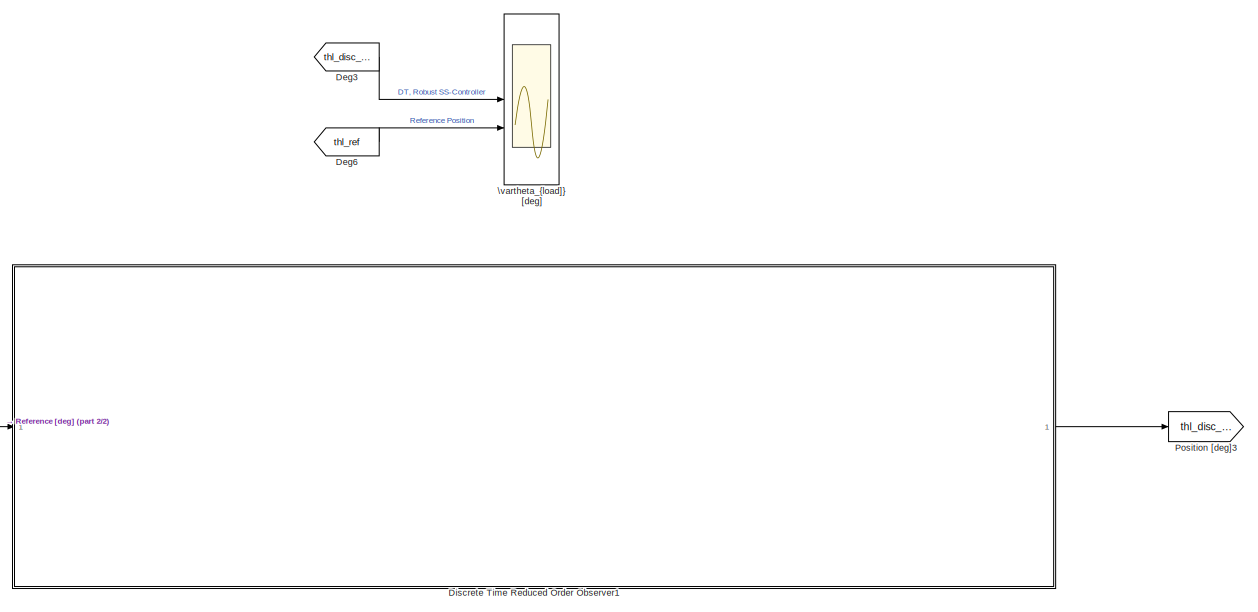
[diagram: root canvas - part 1/2, most of the canvas]
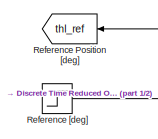
[diagram: root canvas - part 2/2, middle left region]
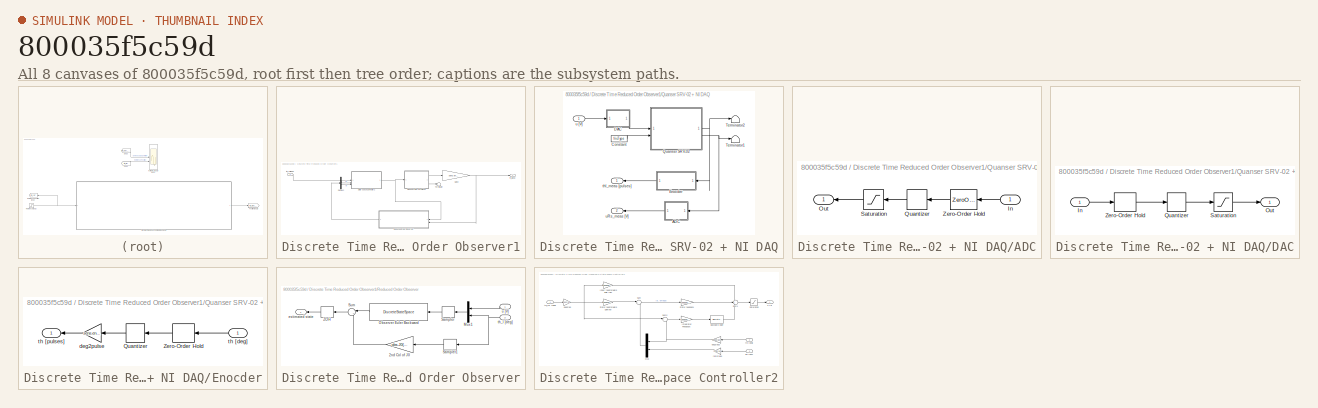
[diagram: thumbnail index - all 8 canvases of the model, root first then tree order]
MODEL slx_800035f5c59d
KIND model
CONFIG AbsTol = auto
CONFIG EnableMultiTasking = off
CONFIG FixedStep = sIn.step_size
CONFIG MaxStep = sIn.step_size
CONFIG MinStep = auto
CONFIG RelTol = auto
CONFIG SampleTimeConstraint = Unconstrained
CONFIG SolverName = VariableStepAuto
CONFIG StartTime = 0.0
CONFIG StopTime = sIn.simulation_time
BLOCK [From] Deg3
  GotoTag = thl_disc_rob
BLOCK [From] Deg6
  GotoTag = thl_ref
BLOCK [SubSystem] Discrete Time Reduced Order Observer1
BLOCK [Demux] Discrete Time Reduced Order Observer1/Demux2
  Outputs = 2
BLOCK [Gain] Discrete Time Reduced Order Observer1/Gain2
  Gain = sens.enc.pulse2deg
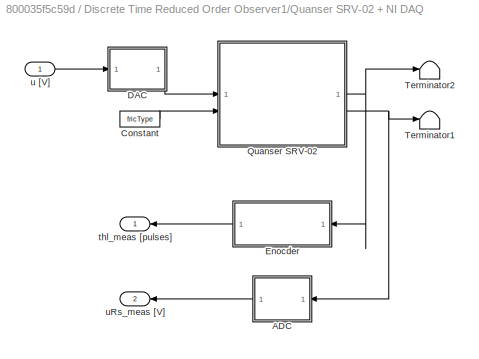
BLOCK [SubSystem] Discrete Time Reduced Order Observer1/Quanser SRV-02 + NI DAQ
BLOCK [SubSystem] Discrete Time Reduced Order Observer1/Quanser SRV-02 + NI DAQ/ADC
BLOCK [Inport] Discrete Time Reduced Order Observer1/Quanser SRV-02 + NI DAQ/ADC/In
BLOCK [Outport] Discrete Time Reduced Order Observer1/Quanser SRV-02 + NI DAQ/ADC/Out
BLOCK [Quantizer] Discrete Time Reduced Order Observer1/Quanser SRV-02 + NI DAQ/ADC/Quantizer
  QuantizationInterval = daq.adc.q
BLOCK [Saturate] Discrete Time Reduced Order Observer1/Quanser SRV-02 + NI DAQ/ADC/Saturation
  LowerLimit = -daq.adc.fs
  UpperLimit = daq.adc.fs
BLOCK [ZeroOrderHold] Discrete Time Reduced Order Observer1/Quanser SRV-02 + NI DAQ/ADC/Zero-Order Hold
  SampleTime = Ts
BLOCK [Constant] Discrete Time Reduced Order Observer1/Quanser SRV-02 + NI DAQ/Constant
  Value = fricType
BLOCK [SubSystem] Discrete Time Reduced Order Observer1/Quanser SRV-02 + NI DAQ/DAC
BLOCK [Inport] Discrete Time Reduced Order Observer1/Quanser SRV-02 + NI DAQ/DAC/In
BLOCK [Outport] Discrete Time Reduced Order Observer1/Quanser SRV-02 + NI DAQ/DAC/Out
BLOCK [Quantizer] Discrete Time Reduced Order Observer1/Quanser SRV-02 + NI DAQ/DAC/Quantizer
  QuantizationInterval = daq.dac.q
BLOCK [Saturate] Discrete Time Reduced Order Observer1/Quanser SRV-02 + NI DAQ/DAC/Saturation
  LowerLimit = -daq.dac.fs
  UpperLimit = daq.dac.fs
BLOCK [ZeroOrderHold] Discrete Time Reduced Order Observer1/Quanser SRV-02 + NI DAQ/DAC/Zero-Order Hold
  SampleTime = Ts
BLOCK [SubSystem] Discrete Time Reduced Order Observer1/Quanser SRV-02 + NI DAQ/Enocder
BLOCK [Quantizer] Discrete Time Reduced Order Observer1/Quanser SRV-02 + NI DAQ/Enocder/Quantizer
  QuantizationInterval = sens.enc.pulse2deg
BLOCK [ZeroOrderHold] Discrete Time Reduced Order Observer1/Quanser SRV-02 + NI DAQ/Enocder/Zero-Order Hold
  SampleTime = Ts
BLOCK [Gain] Discrete Time Reduced Order Observer1/Quanser SRV-02 + NI DAQ/Enocder/deg2pulse
  Gain = sens.enc.deg2pulse
BLOCK [Inport] Discrete Time Reduced Order Observer1/Quanser SRV-02 + NI DAQ/Enocder/th [deg]
BLOCK [Outport] Discrete Time Reduced Order Observer1/Quanser SRV-02 + NI DAQ/Enocder/th [pulses]
BLOCK [ModelReference] Discrete Time Reduced Order Observer1/Quanser SRV-02 + NI DAQ/Quanser SRV-02
  CopyOfModelProtected = on
  ModelNameDialog = SRV02IL_win64.slxp
  ModelReferenceVersion = 1.44
BLOCK [Terminator] Discrete Time Reduced Order Observer1/Quanser SRV-02 + NI DAQ/Terminator1
BLOCK [Terminator] Discrete Time Reduced Order Observer1/Quanser SRV-02 + NI DAQ/Terminator2
BLOCK [Outport] Discrete Time Reduced Order Observer1/Quanser SRV-02 + NI DAQ/thl_meas [pulses]
BLOCK [Inport] Discrete Time Reduced Order Observer1/Quanser SRV-02 + NI DAQ/u [V]
BLOCK [Outport] Discrete Time Reduced Order Observer1/Quanser SRV-02 + NI DAQ/uRs_meas [V]
  Port = 2
BLOCK [SubSystem] Discrete Time Reduced Order Observer1/Reduced Order Observer
BLOCK [Gain] Discrete Time Reduced Order Observer1/Reduced Order Observer/2nd Col of J0
  Gain = obs.J0(:,2)
BLOCK [Mux] Discrete Time Reduced Order Observer1/Reduced Order Observer/Mux1
  DisplayOption = bar
  Inputs = 2
BLOCK [DiscreteStateSpace] Discrete Time Reduced Order Observer1/Reduced Order Observer/Observer Euler Backward
  A = obs.Phi0
  B = obs.Gamma0
  C = obs.H0
  D = zeros(2,2)
  SampleTime = sIn.T_s
BLOCK [ZeroOrderHold] Discrete Time Reduced Order Observer1/Reduced Order Observer/Sampler
  SampleTime = sIn.T_s
BLOCK [ZeroOrderHold] Discrete Time Reduced Order Observer1/Reduced Order Observer/Sampler1
  SampleTime = sIn.T_s
BLOCK [Sum] Discrete Time Reduced Order Observer1/Reduced Order Observer/Sum
  Inputs = |++
BLOCK [ZeroOrderHold] Discrete Time Reduced Order Observer1/Reduced Order Observer/ZOH
  SampleTime = sIn.T_s
BLOCK [Outport] Discrete Time Reduced Order Observer1/Reduced Order Observer/estimated state
BLOCK [Inport] Discrete Time Reduced Order Observer1/Reduced Order Observer/th_l [deg]
  Port = 2
BLOCK [Inport] Discrete Time Reduced Order Observer1/Reduced Order Observer/u [V]
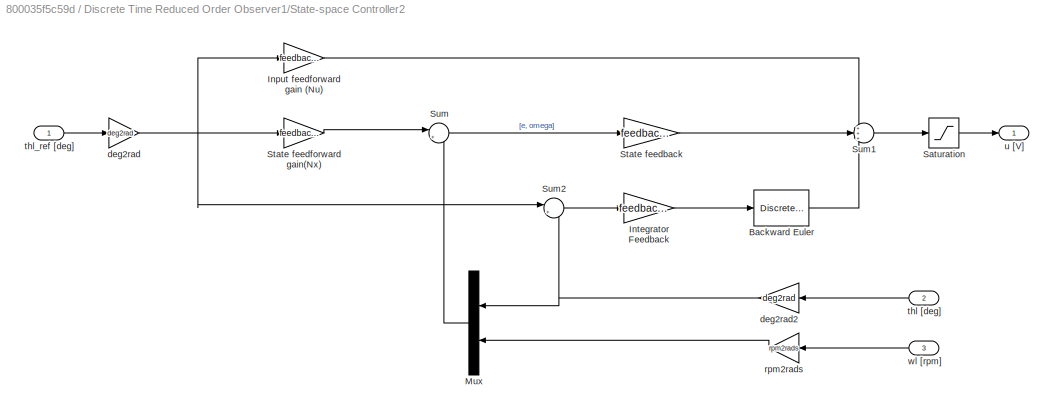
BLOCK [SubSystem] Discrete Time Reduced Order Observer1/State-space Controller2
BLOCK [DiscreteIntegrator] Discrete Time Reduced Order Observer1/State-space Controller2/Backward Euler
  ICPrevOutput = DiscIntNeverNeededParam
  ICPrevScaledInput = DiscIntNeverNeededParam
  InitialConditionSetting = Auto
  IntegratorMethod = Integration: Backward Euler
  SampleTime = sIn.T_s
BLOCK [Gain] Discrete Time Reduced Order Observer1/State-space Controller2/Input feedforward gain (Nu)
  Gain = feedback.Nu
BLOCK [Gain] Discrete Time Reduced Order Observer1/State-space Controller2/Integrator Feedback
  Gain = feedback.integrator
BLOCK [Mux] Discrete Time Reduced Order Observer1/State-space Controller2/Mux
  DisplayOption = bar
  Inputs = 2
  NameLocation = top
BLOCK [Saturate] Discrete Time Reduced Order Observer1/State-space Controller2/Saturation
  LowerLimit = -10
  UpperLimit = 10
BLOCK [Gain] Discrete Time Reduced Order Observer1/State-space Controller2/State feedback
  Gain = feedback.state
  Multiplication = Matrix(K*u)
BLOCK [Gain] Discrete Time Reduced Order Observer1/State-space Controller2/State feedforward gain(Nx)
  Gain = feedback.Nx
BLOCK [Sum] Discrete Time Reduced Order Observer1/State-space Controller2/Sum
  Inputs = |+-
BLOCK [Sum] Discrete Time Reduced Order Observer1/State-space Controller2/Sum1
  Inputs = +++
BLOCK [Sum] Discrete Time Reduced Order Observer1/State-space Controller2/Sum2
  Inputs = |+-
BLOCK [Gain] Discrete Time Reduced Order Observer1/State-space Controller2/deg2rad
  Gain = deg2rad
BLOCK [Gain] Discrete Time Reduced Order Observer1/State-space Controller2/deg2rad2
  Gain = deg2rad
  NameLocation = top
BLOCK [Gain] Discrete Time Reduced Order Observer1/State-space Controller2/rpm2rads
  Gain = rpm2rads
  NameLocation = top
BLOCK [Inport] Discrete Time Reduced Order Observer1/State-space Controller2/thl [deg]
  NameLocation = top
  Port = 2
BLOCK [Inport] Discrete Time Reduced Order Observer1/State-space Controller2/thl_ref [deg]
BLOCK [Outport] Discrete Time Reduced Order Observer1/State-space Controller2/u [V]
BLOCK [Inport] Discrete Time Reduced Order Observer1/State-space Controller2/wl [rpm]
  NameLocation = top
  Port = 3
BLOCK [Terminator] Discrete Time Reduced Order Observer1/Terminator
BLOCK [Outport] Discrete Time Reduced Order Observer1/th_l [deg]
BLOCK [Inport] Discrete Time Reduced Order Observer1/thl_ref [deg]
BLOCK [Goto] Position [deg]3
  GotoTag = thl_disc_rob
BLOCK [Goto] Reference Position [deg]
  GotoTag = thl_ref
  NameLocation = top
BLOCK [Step] Reference [deg]
  After = sIn.position
  SampleTime = 0
  Time = 0
BLOCK [Scope] \vartheta_{load]} [deg]
  Floating = off
  NumInputPorts = 2
  ScopeSpecificationString = Simulink.scopes.TimeScopeBlockCfg('CurrentConfiguration', extmgr.ConfigurationSet(extmgr.Configuration('Core','General UI',true),extmgr.Configuration('Core','Source UI',true),extmgr.Configuration('Sources','WiredSimulink',true,'DataLogging',true,'DataLoggingSaveFormat','StructureWithTime'),extmgr.Configuration('Visuals','Time Domain',true,'SerializedDisplays',{struct('MinYLimReal','-7.695','MaxYLi...<+1746ch>
LINE Deg3:1 -> \vartheta_{load]} [deg]:1
LINE Deg6:1 -> \vartheta_{load]} [deg]:2
LINE Discrete Time Reduced Order Observer1/Demux2:1 -> Discrete Time Reduced Order Observer1/State-space Controller2:2
LINE Discrete Time Reduced Order Observer1/Demux2:2 -> Discrete Time Reduced Order Observer1/State-space Controller2:3
NET Discrete Time Reduced Order Observer1/Gain2:1 -> Discrete Time Reduced Order Observer1/Reduced Order Observer:2, Discrete Time Reduced Order Observer1/th_l [deg]:1
LINE Discrete Time Reduced Order Observer1/Quanser SRV-02 + NI DAQ/ADC/In:1 -> Discrete Time Reduced Order Observer1/Quanser SRV-02 + NI DAQ/ADC/Zero-Order Hold:1
LINE Discrete Time Reduced Order Observer1/Quanser SRV-02 + NI DAQ/ADC/Quantizer:1 -> Discrete Time Reduced Order Observer1/Quanser SRV-02 + NI DAQ/ADC/Saturation:1
LINE Discrete Time Reduced Order Observer1/Quanser SRV-02 + NI DAQ/ADC/Saturation:1 -> Discrete Time Reduced Order Observer1/Quanser SRV-02 + NI DAQ/ADC/Out:1
LINE Discrete Time Reduced Order Observer1/Quanser SRV-02 + NI DAQ/ADC/Zero-Order Hold:1 -> Discrete Time Reduced Order Observer1/Quanser SRV-02 + NI DAQ/ADC/Quantizer:1
LINE Discrete Time Reduced Order Observer1/Quanser SRV-02 + NI DAQ/ADC:1 -> Discrete Time Reduced Order Observer1/Quanser SRV-02 + NI DAQ/uRs_meas [V]:1
LINE Discrete Time Reduced Order Observer1/Quanser SRV-02 + NI DAQ/Constant:1 -> Discrete Time Reduced Order Observer1/Quanser SRV-02 + NI DAQ/Quanser SRV-02:2
LINE Discrete Time Reduced Order Observer1/Quanser SRV-02 + NI DAQ/DAC/In:1 -> Discrete Time Reduced Order Observer1/Quanser SRV-02 + NI DAQ/DAC/Zero-Order Hold:1
LINE Discrete Time Reduced Order Observer1/Quanser SRV-02 + NI DAQ/DAC/Quantizer:1 -> Discrete Time Reduced Order Observer1/Quanser SRV-02 + NI DAQ/DAC/Saturation:1
LINE Discrete Time Reduced Order Observer1/Quanser SRV-02 + NI DAQ/DAC/Saturation:1 -> Discrete Time Reduced Order Observer1/Quanser SRV-02 + NI DAQ/DAC/Out:1
LINE Discrete Time Reduced Order Observer1/Quanser SRV-02 + NI DAQ/DAC/Zero-Order Hold:1 -> Discrete Time Reduced Order Observer1/Quanser SRV-02 + NI DAQ/DAC/Quantizer:1
LINE Discrete Time Reduced Order Observer1/Quanser SRV-02 + NI DAQ/DAC:1 -> Discrete Time Reduced Order Observer1/Quanser SRV-02 + NI DAQ/Quanser SRV-02:1
LINE Discrete Time Reduced Order Observer1/Quanser SRV-02 + NI DAQ/Enocder/Quantizer:1 -> Discrete Time Reduced Order Observer1/Quanser SRV-02 + NI DAQ/Enocder/deg2pulse:1
LINE Discrete Time Reduced Order Observer1/Quanser SRV-02 + NI DAQ/Enocder/Zero-Order Hold:1 -> Discrete Time Reduced Order Observer1/Quanser SRV-02 + NI DAQ/Enocder/Quantizer:1
LINE Discrete Time Reduced Order Observer1/Quanser SRV-02 + NI DAQ/Enocder/deg2pulse:1 -> Discrete Time Reduced Order Observer1/Quanser SRV-02 + NI DAQ/Enocder/th [pulses]:1
LINE Discrete Time Reduced Order Observer1/Quanser SRV-02 + NI DAQ/Enocder/th [deg]:1 -> Discrete Time Reduced Order Observer1/Quanser SRV-02 + NI DAQ/Enocder/Zero-Order Hold:1
LINE Discrete Time Reduced Order Observer1/Quanser SRV-02 + NI DAQ/Enocder:1 -> Discrete Time Reduced Order Observer1/Quanser SRV-02 + NI DAQ/thl_meas [pulses]:1
NET Discrete Time Reduced Order Observer1/Quanser SRV-02 + NI DAQ/Quanser SRV-02:1 -> Discrete Time Reduced Order Observer1/Quanser SRV-02 + NI DAQ/Enocder:1, Discrete Time Reduced Order Observer1/Quanser SRV-02 + NI DAQ/Terminator2:1
NET Discrete Time Reduced Order Observer1/Quanser SRV-02 + NI DAQ/Quanser SRV-02:2 -> Discrete Time Reduced Order Observer1/Quanser SRV-02 + NI DAQ/ADC:1, Discrete Time Reduced Order Observer1/Quanser SRV-02 + NI DAQ/Terminator1:1
LINE Discrete Time Reduced Order Observer1/Quanser SRV-02 + NI DAQ/u [V]:1 -> Discrete Time Reduced Order Observer1/Quanser SRV-02 + NI DAQ/DAC:1
LINE Discrete Time Reduced Order Observer1/Quanser SRV-02 + NI DAQ:1 -> Discrete Time Reduced Order Observer1/Gain2:1
LINE Discrete Time Reduced Order Observer1/Quanser SRV-02 + NI DAQ:2 -> Discrete Time Reduced Order Observer1/Terminator:1
LINE Discrete Time Reduced Order Observer1/Reduced Order Observer/2nd Col of J0:1 -> Discrete Time Reduced Order Observer1/Reduced Order Observer/Sum:2
LINE Discrete Time Reduced Order Observer1/Reduced Order Observer/Mux1:1 -> Discrete Time Reduced Order Observer1/Reduced Order Observer/Sampler:1
LINE Discrete Time Reduced Order Observer1/Reduced Order Observer/Observer Euler Backward:1 -> Discrete Time Reduced Order Observer1/Reduced Order Observer/Sum:1
LINE Discrete Time Reduced Order Observer1/Reduced Order Observer/Sampler1:1 -> Discrete Time Reduced Order Observer1/Reduced Order Observer/2nd Col of J0:1
LINE Discrete Time Reduced Order Observer1/Reduced Order Observer/Sampler:1 -> Discrete Time Reduced Order Observer1/Reduced Order Observer/Observer Euler Backward:1
LINE Discrete Time Reduced Order Observer1/Reduced Order Observer/Sum:1 -> Discrete Time Reduced Order Observer1/Reduced Order Observer/ZOH:1
LINE Discrete Time Reduced Order Observer1/Reduced Order Observer/ZOH:1 -> Discrete Time Reduced Order Observer1/Reduced Order Observer/estimated state:1
NET Discrete Time Reduced Order Observer1/Reduced Order Observer/th_l [deg]:1 -> Discrete Time Reduced Order Observer1/Reduced Order Observer/Mux1:2, Discrete Time Reduced Order Observer1/Reduced Order Observer/Sampler1:1
LINE Discrete Time Reduced Order Observer1/Reduced Order Observer/u [V]:1 -> Discrete Time Reduced Order Observer1/Reduced Order Observer/Mux1:1
LINE Discrete Time Reduced Order Observer1/Reduced Order Observer:1 -> Discrete Time Reduced Order Observer1/Demux2:1
LINE Discrete Time Reduced Order Observer1/State-space Controller2/Backward Euler:1 -> Discrete Time Reduced Order Observer1/State-space Controller2/Sum1:3
LINE Discrete Time Reduced Order Observer1/State-space Controller2/Input feedforward gain (Nu):1 -> Discrete Time Reduced Order Observer1/State-space Controller2/Sum1:1
LINE Discrete Time Reduced Order Observer1/State-space Controller2/Integrator Feedback:1 -> Discrete Time Reduced Order Observer1/State-space Controller2/Backward Euler:1
LINE Discrete Time Reduced Order Observer1/State-space Controller2/Mux:1 -> Discrete Time Reduced Order Observer1/State-space Controller2/Sum:2
LINE Discrete Time Reduced Order Observer1/State-space Controller2/Saturation:1 -> Discrete Time Reduced Order Observer1/State-space Controller2/u [V]:1
LINE Discrete Time Reduced Order Observer1/State-space Controller2/State feedback:1 -> Discrete Time Reduced Order Observer1/State-space Controller2/Sum1:2
LINE Discrete Time Reduced Order Observer1/State-space Controller2/State feedforward gain(Nx):1 -> Discrete Time Reduced Order Observer1/State-space Controller2/Sum:1
LINE Discrete Time Reduced Order Observer1/State-space Controller2/Sum1:1 -> Discrete Time Reduced Order Observer1/State-space Controller2/Saturation:1
LINE Discrete Time Reduced Order Observer1/State-space Controller2/Sum2:1 -> Discrete Time Reduced Order Observer1/State-space Controller2/Integrator Feedback:1
LINE Discrete Time Reduced Order Observer1/State-space Controller2/Sum:1 -> Discrete Time Reduced Order Observer1/State-space Controller2/State feedback:1
NET Discrete Time Reduced Order Observer1/State-space Controller2/deg2rad2:1 -> Discrete Time Reduced Order Observer1/State-space Controller2/Mux:1, Discrete Time Reduced Order Observer1/State-space Controller2/Sum2:2
NET Discrete Time Reduced Order Observer1/State-space Controller2/deg2rad:1 -> Discrete Time Reduced Order Observer1/State-space Controller2/Input feedforward gain (Nu):1, Discrete Time Reduced Order Observer1/State-space Controller2/State feedforward gain(Nx):1, Discrete Time Reduced Order Observer1/State-space Controller2/Sum2:1
LINE Discrete Time Reduced Order Observer1/State-space Controller2/rpm2rads:1 -> Discrete Time Reduced Order Observer1/State-space Controller2/Mux:2
LINE Discrete Time Reduced Order Observer1/State-space Controller2/thl [deg]:1 -> Discrete Time Reduced Order Observer1/State-space Controller2/deg2rad2:1
LINE Discrete Time Reduced Order Observer1/State-space Controller2/thl_ref [deg]:1 -> Discrete Time Reduced Order Observer1/State-space Controller2/deg2rad:1
LINE Discrete Time Reduced Order Observer1/State-space Controller2/wl [rpm]:1 -> Discrete Time Reduced Order Observer1/State-space Controller2/rpm2rads:1
NET Discrete Time Reduced Order Observer1/State-space Controller2:1 -> Discrete Time Reduced Order Observer1/Quanser SRV-02 + NI DAQ:1, Discrete Time Reduced Order Observer1/Reduced Order Observer:1
LINE Discrete Time Reduced Order Observer1/thl_ref [deg]:1 -> Discrete Time Reduced Order Observer1/State-space Controller2:1
LINE Discrete Time Reduced Order Observer1:1 -> Position [deg]3:1
NET Reference [deg]:1 -> Discrete Time Reduced Order Observer1:1, Reference Position [deg]:1
note: NET lines group one-source signal fan-out (src -> all destinations, sorted); 1:1 wires keep LINE
